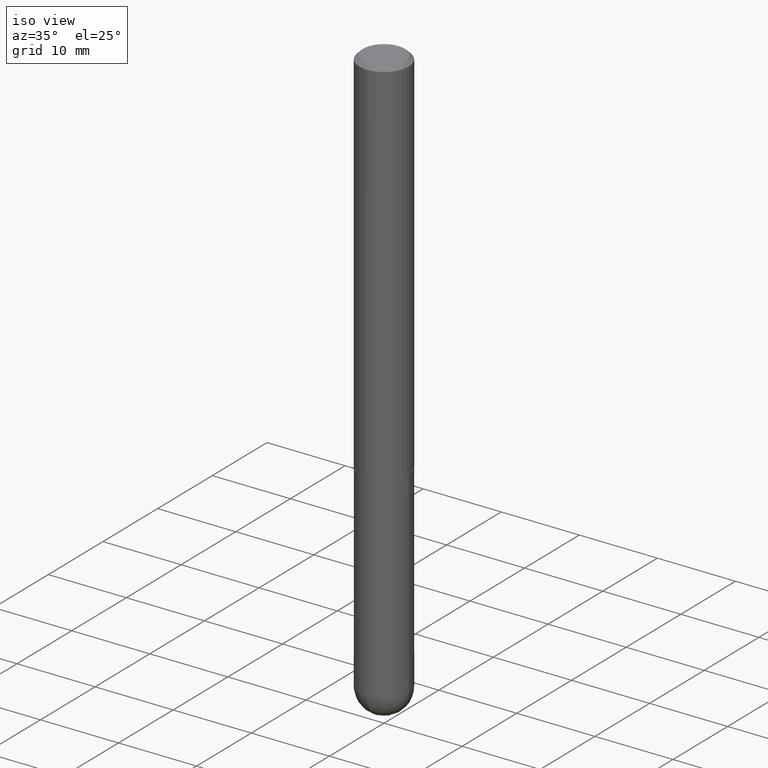
[diagram: clean part render]
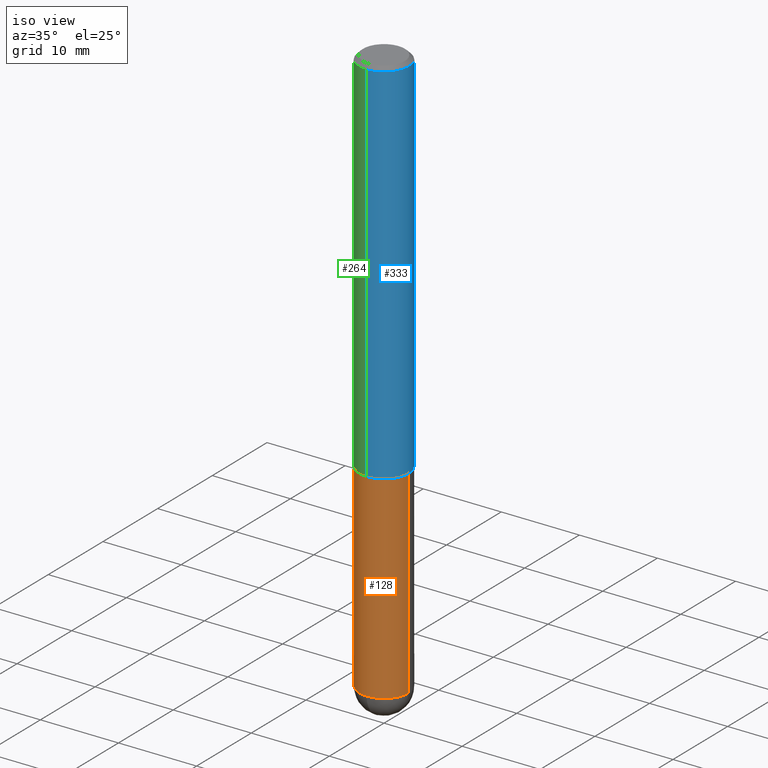
[diagram: same view with three faces highlighted in distinct colors, each labeled with its STEP entity id]
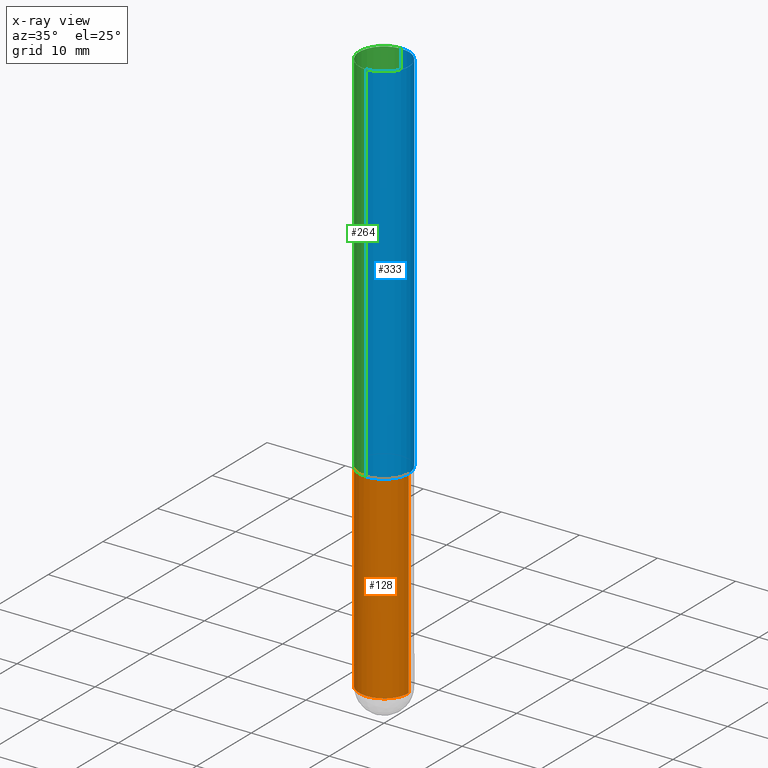
[diagram: x-ray of the same camera — body ghosted, the three highlighted faces saturated]
A machine part, iso view with three faces highlighted in distinct colors.
The next image is the same camera in x-ray (body ghosted, the three faces saturated) — at least one of them is partly hidden behind the body in this view.
Their STEP definitions:

[orange] entity #128 — the highlighted cylindrical surface (edge-blend (fillet) strip) has radius 3.175 mm, axis along (-0, 0, 1).
#3 = VERTEX_POINT ( 'NONE', #177 ) ;
#13 = CARTESIAN_POINT ( 'NONE',  ( 0.1250000000000000000, -8.728703347107833388E-16, 6.095220969744919741E-30 ) ) ;
#18 = CARTESIAN_POINT ( 'NONE',  ( 7.030722817782268837E-29, -1.003800884917404626E-14, -2.875000000000000444 ) ) ;
#39 = EDGE_CURVE ( 'NONE', #3, #68, #278, .T. ) ;
#58 = CIRCLE ( 'NONE', #321, 0.1250000000000000000 ) ;
#64 = AXIS2_PLACEMENT_3D ( 'NONE', #139, #359, #134 ) ;
#65 = VECTOR ( 'NONE', #346, 39.37007874015748143 ) ;
#68 = VERTEX_POINT ( 'NONE', #122 ) ;
#83 = EDGE_CURVE ( 'NONE', #145, #267, #58, .T. ) ;
#115 = ORIENTED_EDGE ( 'NONE', *, *, #83, .T. ) ;
#122 = CARTESIAN_POINT ( 'NONE',  ( 0.1250000000000000000, -7.419397845041682046E-15, -1.875000000000000000 ) ) ;
#126 = ORIENTED_EDGE ( 'NONE', *, *, #319, .F. ) ;
#128 = ADVANCED_FACE ( 'NONE', ( #151 ), #411, .T. ) ;
#130 = ORIENTED_EDGE ( 'NONE', *, *, #360, .T. ) ;
#133 = CARTESIAN_POINT ( 'NONE',  ( -0.1250000000000000000, 8.881784197001252323E-16, -6.148668862818632227E-30 ) ) ;
#134 = DIRECTION ( 'NONE',  ( 1.000000000000000000, -6.982962677686266711E-15, 4.876176775795935793E-29 ) ) ;
#139 = CARTESIAN_POINT ( 'NONE',  ( 0.000000000000000000, 0.000000000000000000, 0.000000000000000000 ) ) ;
#145 = VERTEX_POINT ( 'NONE', #175 ) ;
#147 = CARTESIAN_POINT ( 'NONE',  ( 7.030722817782268837E-29, -1.003800884917404626E-14, -2.875000000000000444 ) ) ;
#151 = FACE_OUTER_BOUND ( 'NONE', #174, .T. ) ;
#153 = DIRECTION ( 'NONE',  ( 1.000000000000000000, -6.982962677686262766E-15, 0.000000000000000000 ) ) ;
#164 = DIRECTION ( 'NONE',  ( -2.445468806185136597E-29, 3.491481338843145583E-15, 1.000000000000000000 ) ) ;
#174 = EDGE_LOOP ( 'NONE', ( #126, #130, #115, #241, #202 ) ) ;
#175 = CARTESIAN_POINT ( 'NONE',  ( -8.881784197000569959E-16, -0.1250000000000103806, -2.875000000000000000 ) ) ;
#177 = CARTESIAN_POINT ( 'NONE',  ( -0.1250000000000000000, -7.404089760052348041E-15, -1.875000000000000000 ) ) ;
#202 = ORIENTED_EDGE ( 'NONE', *, *, #39, .F. ) ;
#221 = CIRCLE ( 'NONE', #265, 0.1250000000000000000 ) ;
#223 = DIRECTION ( 'NONE',  ( -2.445468806185136877E-29, 3.491481338843145188E-15, 1.000000000000000000 ) ) ;
#226 = CARTESIAN_POINT ( 'NONE',  ( -0.1250000000000000000, -7.404089760052348041E-15, -2.875000000000000444 ) ) ;
#236 = VECTOR ( 'NONE', #223, 39.37007874015748143 ) ;
#241 = ORIENTED_EDGE ( 'NONE', *, *, #382, .T. ) ;
#244 = CARTESIAN_POINT ( 'NONE',  ( 4.585254011597131119E-29, -6.546527510330898707E-15, -1.875000000000000000 ) ) ;
#253 = DIRECTION ( 'NONE',  ( 1.000000000000000000, -6.982962677686262766E-15, 0.000000000000000000 ) ) ;
#265 = AXIS2_PLACEMENT_3D ( 'NONE', #147, #164, #408 ) ;
#267 = VERTEX_POINT ( 'NONE', #313 ) ;
#277 = DIRECTION ( 'NONE',  ( -2.445468806185136597E-29, 3.491481338843145583E-15, 1.000000000000000000 ) ) ;
#278 = CIRCLE ( 'NONE', #342, 0.1250000000000000000 ) ;
#290 = LINE ( 'NONE', #133, #65 ) ;
#303 = DIRECTION ( 'NONE',  ( -2.445468806185136597E-29, 3.491481338843145583E-15, 1.000000000000000000 ) ) ;
#313 = CARTESIAN_POINT ( 'NONE',  ( 0.1250000000000000000, -9.165138514463255034E-15, -2.875000000000000444 ) ) ;
#319 = EDGE_CURVE ( 'NONE', #327, #3, #290, .T. ) ;
#321 = AXIS2_PLACEMENT_3D ( 'NONE', #18, #303, #153 ) ;
#327 = VERTEX_POINT ( 'NONE', #226 ) ;
#335 = LINE ( 'NONE', #13, #236 ) ;
#342 = AXIS2_PLACEMENT_3D ( 'NONE', #244, #277, #253 ) ;
#346 = DIRECTION ( 'NONE',  ( -2.445468806185136877E-29, 3.491481338843145188E-15, 1.000000000000000000 ) ) ;
#359 = DIRECTION ( 'NONE',  ( -2.445468806185136597E-29, 3.491481338843145583E-15, 1.000000000000000000 ) ) ;
#360 = EDGE_CURVE ( 'NONE', #327, #145, #221, .T. ) ;
#382 = EDGE_CURVE ( 'NONE', #267, #68, #335, .T. ) ;
#408 = DIRECTION ( 'NONE',  ( 1.000000000000000000, -6.982962677686262766E-15, 0.000000000000000000 ) ) ;
#411 = CYLINDRICAL_SURFACE ( 'NONE', #64, 0.1250000000000000000 ) ;

[blue] entity #333 — the highlighted cylindrical surface (edge-blend (fillet) strip) has radius 3.175 mm, axis along (-0, 0, 1).
#23 = CYLINDRICAL_SURFACE ( 'NONE', #148, 0.1250000000000001388 ) ;
#27 = LINE ( 'NONE', #209, #365 ) ;
#28 = ORIENTED_EDGE ( 'NONE', *, *, #378, .T. ) ;
#34 = CARTESIAN_POINT ( 'NONE',  ( 4.583485568581772331E-29, -6.542066489525676145E-15, -1.874000000000000110 ) ) ;
#42 = DIRECTION ( 'NONE',  ( -6.982962677686265922E-15, -1.000000000000000000, 3.490963975200467606E-15 ) ) ;
#45 = DIRECTION ( 'NONE',  ( -2.445830079285897972E-29, 3.490963975200467212E-15, 1.000000000000000000 ) ) ;
#47 = CARTESIAN_POINT ( 'NONE',  ( -8.728703347107390640E-16, -0.1250000000000067724, -1.873999999999999444 ) ) ;
#49 = DIRECTION ( 'NONE',  ( -2.445830079285897691E-29, 3.490963975200467606E-15, 1.000000000000000000 ) ) ;
#72 = AXIS2_PLACEMENT_3D ( 'NONE', #34, #229, #173 ) ;
#91 = EDGE_CURVE ( 'NONE', #258, #293, #154, .T. ) ;
#127 = CIRCLE ( 'NONE', #72, 0.1250000000000002498 ) ;
#129 = CARTESIAN_POINT ( 'NONE',  ( -8.575622497214411495E-16, -0.1250000000000001110, -0.01999999999999959102 ) ) ;
#140 = VERTEX_POINT ( 'NONE', #210 ) ;
#148 = AXIS2_PLACEMENT_3D ( 'NONE', #190, #228, #42 ) ;
#154 = CIRCLE ( 'NONE', #376, 0.1250000000000000278 ) ;
#165 = EDGE_CURVE ( 'NONE', #238, #140, #127, .T. ) ;
#173 = DIRECTION ( 'NONE',  ( -6.982962677686265133E-15, -1.000000000000000000, 4.370956789862812472E-15 ) ) ;
#190 = CARTESIAN_POINT ( 'NONE',  ( 0.000000000000000000, 0.000000000000000000, 0.000000000000000000 ) ) ;
#193 = CARTESIAN_POINT ( 'NONE',  ( -8.728703347107842263E-16, -0.1250000000000001388, 4.363704969000589438E-16 ) ) ;
#197 = CARTESIAN_POINT ( 'NONE',  ( 8.728703347107839305E-16, 0.1249999999999999584, -0.02000000000000046185 ) ) ;
#208 = EDGE_LOOP ( 'NONE', ( #368, #28, #379, #409 ) ) ;
#209 = CARTESIAN_POINT ( 'NONE',  ( 8.881784197001260212E-16, 0.1250000000000001388, -4.363704969000589438E-16 ) ) ;
#210 = CARTESIAN_POINT ( 'NONE',  ( 8.881784197001496870E-16, 0.1249999999999936995, -1.874000000000000554 ) ) ;
#216 = CARTESIAN_POINT ( 'NONE',  ( 4.891660158571801654E-31, -6.981927950400942509E-17, -0.02000000000000002470 ) ) ;
#224 = DIRECTION ( 'NONE',  ( -2.445830079285897972E-29, 3.490963975200467212E-15, 1.000000000000000000 ) ) ;
#228 = DIRECTION ( 'NONE',  ( -2.445830079285897691E-29, 3.490963975200467606E-15, 1.000000000000000000 ) ) ;
#229 = DIRECTION ( 'NONE',  ( -2.445830079285897691E-29, 3.490963975200467606E-15, 1.000000000000000000 ) ) ;
#238 = VERTEX_POINT ( 'NONE', #47 ) ;
#254 = VECTOR ( 'NONE', #224, 39.37007874015748143 ) ;
#258 = VERTEX_POINT ( 'NONE', #129 ) ;
#262 = FACE_OUTER_BOUND ( 'NONE', #208, .T. ) ;
#292 = EDGE_CURVE ( 'NONE', #238, #258, #353, .T. ) ;
#293 = VERTEX_POINT ( 'NONE', #197 ) ;
#331 = DIRECTION ( 'NONE',  ( -6.982962677686265922E-15, -1.000000000000000000, 3.483106191921934765E-15 ) ) ;
#333 = ADVANCED_FACE ( 'NONE', ( #262 ), #23, .T. ) ;
#353 = LINE ( 'NONE', #193, #254 ) ;
#365 = VECTOR ( 'NONE', #45, 39.37007874015748143 ) ;
#368 = ORIENTED_EDGE ( 'NONE', *, *, #165, .T. ) ;
#376 = AXIS2_PLACEMENT_3D ( 'NONE', #216, #49, #331 ) ;
#378 = EDGE_CURVE ( 'NONE', #140, #293, #27, .T. ) ;
#379 = ORIENTED_EDGE ( 'NONE', *, *, #91, .F. ) ;
#409 = ORIENTED_EDGE ( 'NONE', *, *, #292, .F. ) ;

[green] entity #264 — the highlighted cylindrical surface (edge-blend (fillet) strip) has radius 3.175 mm, axis along (-0, 0, 1).
#4 = CIRCLE ( 'NONE', #167, 0.1250000000000002498 ) ;
#27 = LINE ( 'NONE', #209, #365 ) ;
#31 = ORIENTED_EDGE ( 'NONE', *, *, #292, .T. ) ;
#45 = DIRECTION ( 'NONE',  ( -2.445830079285897972E-29, 3.490963975200467212E-15, 1.000000000000000000 ) ) ;
#47 = CARTESIAN_POINT ( 'NONE',  ( -8.728703347107390640E-16, -0.1250000000000067724, -1.873999999999999444 ) ) ;
#52 = DIRECTION ( 'NONE',  ( -2.445830079285897691E-29, 3.490963975200467606E-15, 1.000000000000000000 ) ) ;
#59 = CARTESIAN_POINT ( 'NONE',  ( 0.000000000000000000, 0.000000000000000000, 0.000000000000000000 ) ) ;
#75 = EDGE_CURVE ( 'NONE', #140, #238, #4, .T. ) ;
#95 = DIRECTION ( 'NONE',  ( -2.445830079285897691E-29, 3.490963975200467606E-15, 1.000000000000000000 ) ) ;
#129 = CARTESIAN_POINT ( 'NONE',  ( -8.575622497214411495E-16, -0.1250000000000001110, -0.01999999999999959102 ) ) ;
#140 = VERTEX_POINT ( 'NONE', #210 ) ;
#167 = AXIS2_PLACEMENT_3D ( 'NONE', #398, #219, #301 ) ;
#171 = ORIENTED_EDGE ( 'NONE', *, *, #403, .F. ) ;
#193 = CARTESIAN_POINT ( 'NONE',  ( -8.728703347107842263E-16, -0.1250000000000001388, 4.363704969000589438E-16 ) ) ;
#197 = CARTESIAN_POINT ( 'NONE',  ( 8.728703347107839305E-16, 0.1249999999999999584, -0.02000000000000046185 ) ) ;
#209 = CARTESIAN_POINT ( 'NONE',  ( 8.881784197001260212E-16, 0.1250000000000001388, -4.363704969000589438E-16 ) ) ;
#210 = CARTESIAN_POINT ( 'NONE',  ( 8.881784197001496870E-16, 0.1249999999999936995, -1.874000000000000554 ) ) ;
#219 = DIRECTION ( 'NONE',  ( -2.445830079285897691E-29, 3.490963975200467606E-15, 1.000000000000000000 ) ) ;
#224 = DIRECTION ( 'NONE',  ( -2.445830079285897972E-29, 3.490963975200467212E-15, 1.000000000000000000 ) ) ;
#230 = ORIENTED_EDGE ( 'NONE', *, *, #378, .F. ) ;
#238 = VERTEX_POINT ( 'NONE', #47 ) ;
#251 = CARTESIAN_POINT ( 'NONE',  ( 4.891660158571801654E-31, -6.981927950400942509E-17, -0.02000000000000002470 ) ) ;
#254 = VECTOR ( 'NONE', #224, 39.37007874015748143 ) ;
#255 = FACE_OUTER_BOUND ( 'NONE', #309, .T. ) ;
#257 = CYLINDRICAL_SURFACE ( 'NONE', #358, 0.1250000000000001388 ) ;
#258 = VERTEX_POINT ( 'NONE', #129 ) ;
#264 = ADVANCED_FACE ( 'NONE', ( #255 ), #257, .T. ) ;
#292 = EDGE_CURVE ( 'NONE', #238, #258, #353, .T. ) ;
#293 = VERTEX_POINT ( 'NONE', #197 ) ;
#299 = AXIS2_PLACEMENT_3D ( 'NONE', #251, #52, #392 ) ;
#301 = DIRECTION ( 'NONE',  ( -6.982962677686265133E-15, -1.000000000000000000, 4.370956789862812472E-15 ) ) ;
#309 = EDGE_LOOP ( 'NONE', ( #230, #352, #31, #171 ) ) ;
#352 = ORIENTED_EDGE ( 'NONE', *, *, #75, .T. ) ;
#353 = LINE ( 'NONE', #193, #254 ) ;
#358 = AXIS2_PLACEMENT_3D ( 'NONE', #59, #95, #375 ) ;
#365 = VECTOR ( 'NONE', #45, 39.37007874015748143 ) ;
#375 = DIRECTION ( 'NONE',  ( -6.982962677686265922E-15, -1.000000000000000000, 3.490963975200467606E-15 ) ) ;
#378 = EDGE_CURVE ( 'NONE', #140, #293, #27, .T. ) ;
#392 = DIRECTION ( 'NONE',  ( -6.982962677686265922E-15, -1.000000000000000000, 3.483106191921934765E-15 ) ) ;
#398 = CARTESIAN_POINT ( 'NONE',  ( 4.583485568581772331E-29, -6.542066489525676145E-15, -1.874000000000000110 ) ) ;
#403 = EDGE_CURVE ( 'NONE', #293, #258, #410, .T. ) ;
#410 = CIRCLE ( 'NONE', #299, 0.1250000000000000278 ) ;